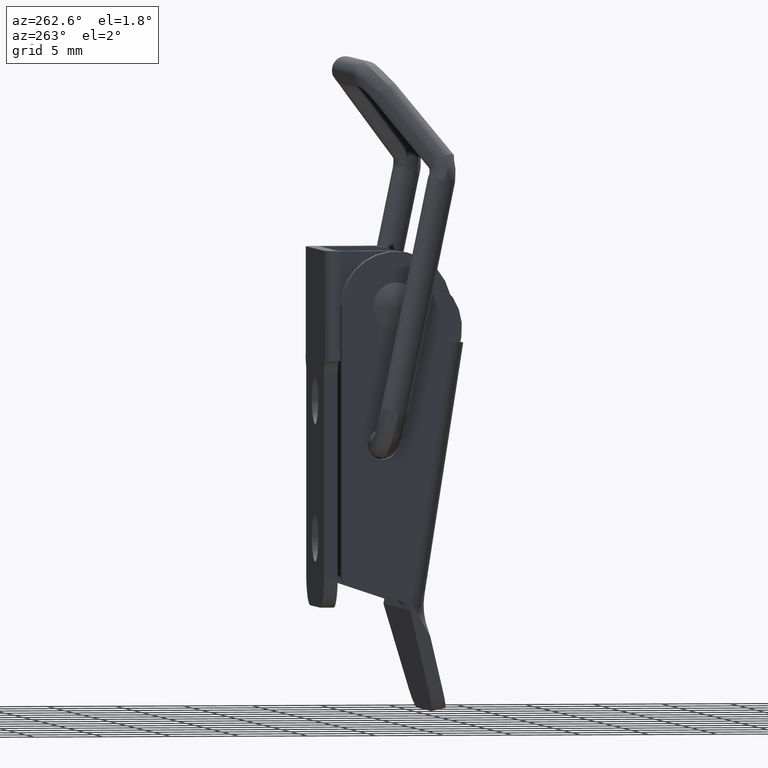
[diagram: clean part render]
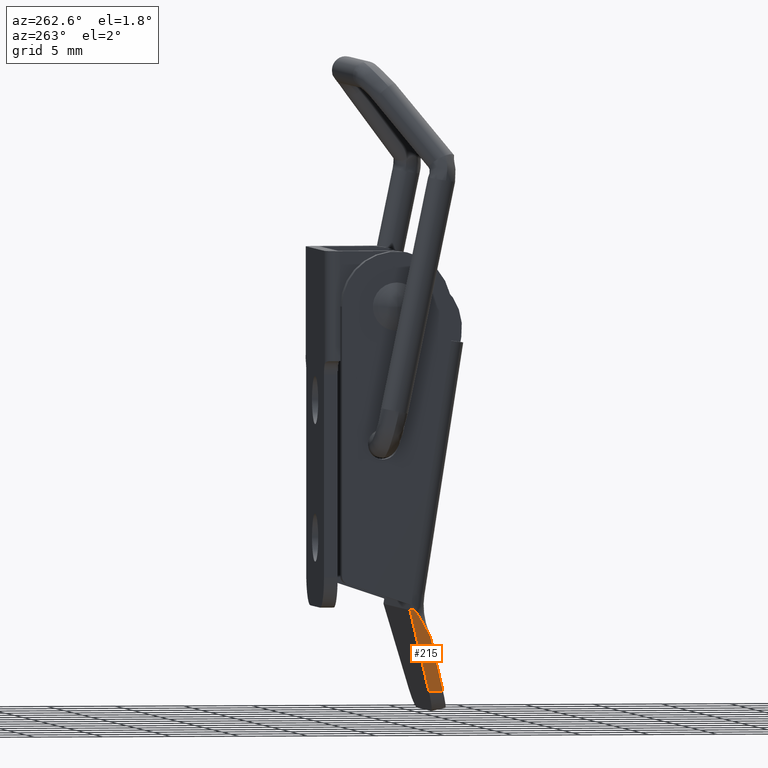
[diagram: same view with one face highlighted and labeled with its STEP entity id]
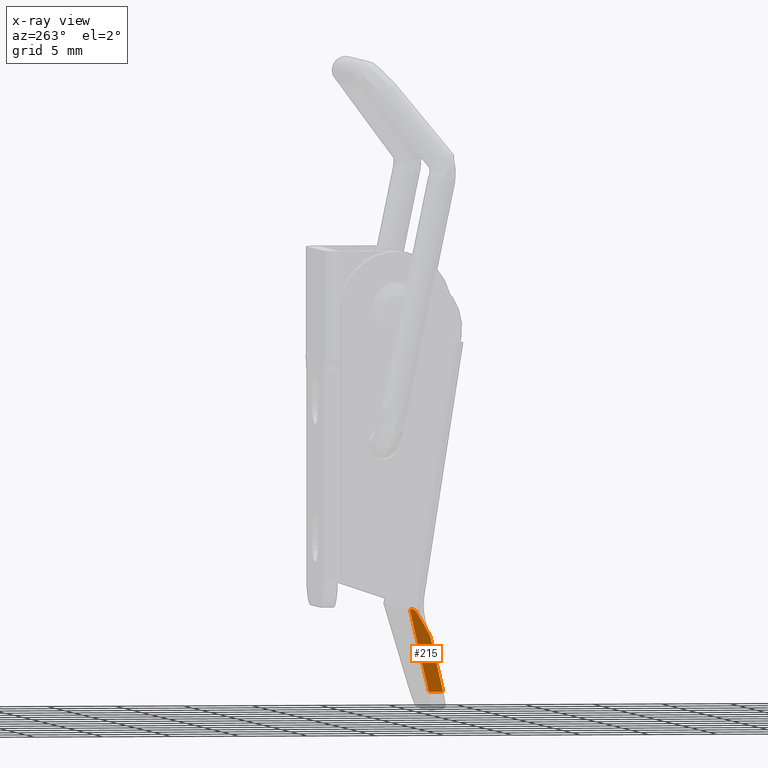
[diagram: x-ray of the same camera — body ghosted, the highlighted face saturated]
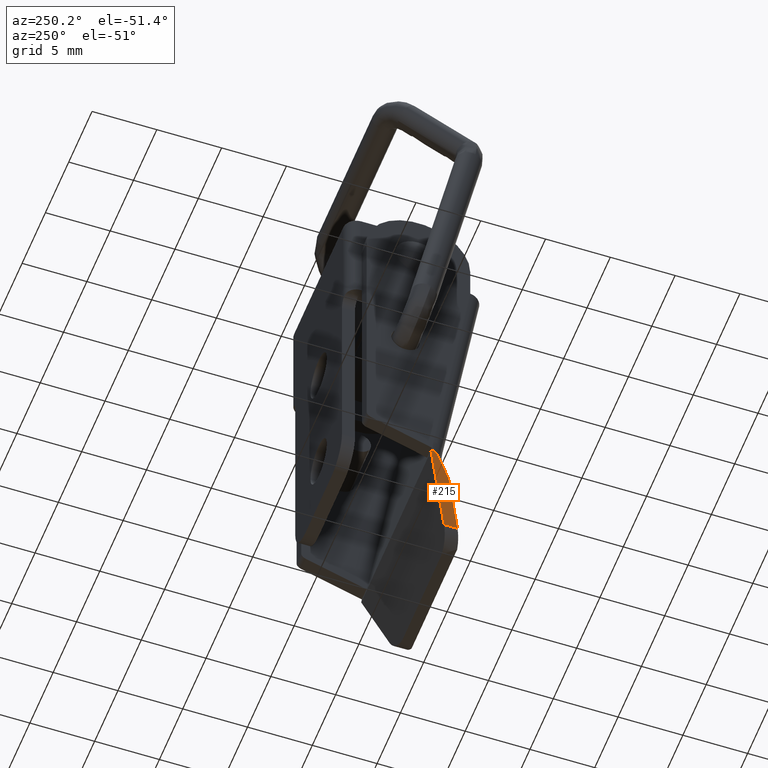
[diagram: same view with one face highlighted and labeled with its STEP entity id]
A machine part, auxiliary view. The second image highlights one B-rep face of the part: STEP entity #215.
The next image is the same camera in x-ray: the body ghosted, the highlighted face saturated — about 0% of this face is hidden behind the body in this view.
A second angle (auxiliary view) of the same face is appended — the face is thin or edge-on in the first view.
In plain terms, the highlighted planar face has unit normal (0.9642, 0, 0.2651).
Its self-contained STEP definition (entity closure, byte-faithful):
#215=ADVANCED_FACE('',(#933),#932,.F.);
#932=PLANE('',#1713);
#933=FACE_OUTER_BOUND('',#1714,.T.);
#1710=CARTESIAN_POINT('',(-7.66578447367E+00,-3.87109828370E+00,-2.13969822074E+01));
#1711=DIRECTION('',(9.64223958222E-01,-0.00000000000E+00,2.65088963161E-01));
#1712=DIRECTION('',(2.65088963161E-01,0.00000000000E+00,-9.64223958222E-01));
#1713=AXIS2_PLACEMENT_3D('',#1710,#1711,#1712);
#1714=EDGE_LOOP('',(#3652,#3653,#3654,#3655,#3656,#3657,#3658));
#3652=ORIENTED_EDGE('',*,*,#3956,.T.);
#3653=ORIENTED_EDGE('',*,*,#3989,.T.);
#3654=ORIENTED_EDGE('',*,*,#3993,.T.);
#3655=ORIENTED_EDGE('',*,*,#4020,.T.);
#3656=ORIENTED_EDGE('',*,*,#4025,.F.);
#3657=ORIENTED_EDGE('',*,*,#4026,.T.);
#3658=ORIENTED_EDGE('',*,*,#4056,.F.);
#3956=EDGE_CURVE('',#4832,#4825,#4833,.T.);
#3989=EDGE_CURVE('',#4825,#5050,#5057,.T.);
#3993=EDGE_CURVE('',#5050,#5077,#5084,.T.);
#4020=EDGE_CURVE('',#5077,#5257,#5264,.T.);
#4025=EDGE_CURVE('',#5289,#5257,#5296,.T.);
#4026=EDGE_CURVE('',#5289,#5302,#5303,.T.);
#4056=EDGE_CURVE('',#4832,#5302,#5499,.T.);
#4825=VERTEX_POINT('',#6480);
#4832=VERTEX_POINT('',#6485);
#4833=LINE('',#6486,#6487);
#5050=VERTEX_POINT('',#6616);
#5057=(BOUNDED_CURVE() B_SPLINE_CURVE(3,(#6621,#6622,#6623,#6624,#6625,#6626,#6627,#6628,#6629,#6630,#6631,#6632),.UNSPECIFIED.,.F.,.F.) B_SPLINE_CURVE_WITH_KNOTS((4,2,2,2,2,4),(2.07403313169E-16,1.29139600094E-03,1.93709400141E-03,2.25994300165E-03,2.42136750177E-03,2.58279200188E-03),.UNSPECIFIED.) CURVE() GEOMETRIC_REPRESENTATION_ITEM() RATIONAL_B_SPLINE_CURVE((1.00000000000E+00,1.00000000000E+00,1.00000000000E+00,1.00000000000E+00,1.00000000000E+00,1.00000000000E+00,1.00000000000E+00,1.00000000000E+00,1.00000000000E+00,1.00000000000E+00,1.00000000000E+00,1.00000000000E+00)) REPRESENTATION_ITEM('') );
#5077=VERTEX_POINT('',#6641);
#5084=LINE('',#6645,#6646);
#5257=VERTEX_POINT('',#6750);
#5264=LINE('',#6754,#6755);
#5289=VERTEX_POINT('',#6767);
#5296=(BOUNDED_CURVE() B_SPLINE_CURVE(2,(#6771,#6772,#6773),.UNSPECIFIED.,.F.,.F.) B_SPLINE_CURVE_WITH_KNOTS((3,3),(-1.30987081908E+00,-1.23348979701E+00),.UNSPECIFIED.) CURVE() GEOMETRIC_REPRESENTATION_ITEM() RATIONAL_B_SPLINE_CURVE((1.00000000000E+00,9.99270831065E-01,1.00000000000E+00)) REPRESENTATION_ITEM('') );
#5302=VERTEX_POINT('',#6774);
#5303=LINE('',#6775,#6776);
#5499=LINE('',#6895,#6896);
#6480=CARTESIAN_POINT('',(-6.94670718818E+00,-2.53667314997E+00,-2.40125250735E+01));
#6485=CARTESIAN_POINT('',(-5.84215526327E+00,-3.60804739266E+00,-2.80301779263E+01));
#6486=CARTESIAN_POINT('',(-5.84215526327E+00,-3.60804739266E+00,-2.80301779263E+01));
#6487=VECTOR('',#6488,4.30225663677E+00);
#6488=DIRECTION('',(-2.56737804870E-01,2.49026111909E-01,9.33847790134E-01));
#6616=CARTESIAN_POINT('',(-7.50000000000E+00,-1.10822727135E+00,-2.20000000000E+01));
#6621=CARTESIAN_POINT('',(-6.94670718818E+00,-2.53667314997E+00,-2.40125250735E+01));
#6622=CARTESIAN_POINT('',(-7.04334166874E+00,-2.30678226349E+00,-2.36610306912E+01));
#6623=CARTESIAN_POINT('',(-7.14431830208E+00,-2.10588979298E+00,-2.32937423367E+01));
#6624=CARTESIAN_POINT('',(-7.29583616388E+00,-1.80490445069E+00,-2.27426173457E+01));
#6625=CARTESIAN_POINT('',(-7.34648567489E+00,-1.70553472764E+00,-2.25583868466E+01));
#6626=CARTESIAN_POINT('',(-7.41841814278E+00,-1.52948759731E+00,-2.22967425741E+01));
#6627=CARTESIAN_POINT('',(-7.44193388509E+00,-1.46599488494E+00,-2.22112073565E+01));
#6628=CARTESIAN_POINT('',(-7.47208397024E+00,-1.35156171196E+00,-2.21015406466E+01));
#6629=CARTESIAN_POINT('',(-7.48118921841E+00,-1.31052498872E+00,-2.20684215822E+01));
#6630=CARTESIAN_POINT('',(-7.49534316153E+00,-1.21603288708E+00,-2.20169385974E+01));
#6631=CARTESIAN_POINT('',(-7.50000000000E+00,-1.16300270856E+00,-2.20000000000E+01));
#6632=CARTESIAN_POINT('',(-7.50000000000E+00,-1.10822727135E+00,-2.20000000000E+01));
#6641=CARTESIAN_POINT('',(-7.50000000000E+00,-9.88048538754E-01,-2.20000000000E+01));
#6645=CARTESIAN_POINT('',(-7.50000000000E+00,-1.10822727135E+00,-2.20000000000E+01));
#6646=VECTOR('',#6647,1.20178732596E-01);
#6647=DIRECTION('',(0.00000000000E+00,1.00000000000E+00,0.00000000000E+00));
#6750=CARTESIAN_POINT('',(-7.48136659599E+00,-9.77538482253E-01,-2.20677763961E+01));
#6754=CARTESIAN_POINT('',(-7.50000000000E+00,-9.88048538754E-01,-2.20000000000E+01));
#6755=VECTOR('',#6756,7.10725326600E-02);
#6756=DIRECTION('',(2.62174475957E-01,1.47877894691E-01,-9.53622919407E-01));
#6767=CARTESIAN_POINT('',(-7.46130485799E+00,-1.00004063425E+00,-2.21407481570E+01));
#6771=CARTESIAN_POINT('',(-7.46130485799E+00,-1.00004063425E+00,-2.21407481570E+01));
#6772=CARTESIAN_POINT('',(-7.47145391529E+00,-9.90183650504E-01,-2.21038323832E+01));
#6773=CARTESIAN_POINT('',(-7.48136659599E+00,-9.77538482253E-01,-2.20677763961E+01));
#6774=CARTESIAN_POINT('',(-5.84215526327E+00,-2.57259370615E+00,-2.80301779263E+01));
#6775=CARTESIAN_POINT('',(-7.46130485799E+00,-1.00004063425E+00,-2.21407481570E+01));
#6776=VECTOR('',#6777,6.30713497416E+00);
#6777=DIRECTION('',(2.56717130892E-01,-2.49329224496E-01,-9.33772591437E-01));
#6895=CARTESIAN_POINT('',(-5.84215526327E+00,-3.60804739266E+00,-2.80301779263E+01));
#6896=VECTOR('',#6897,1.03545368651E+00);
#6897=DIRECTION('',(0.00000000000E+00,1.00000000000E+00,0.00000000000E+00));